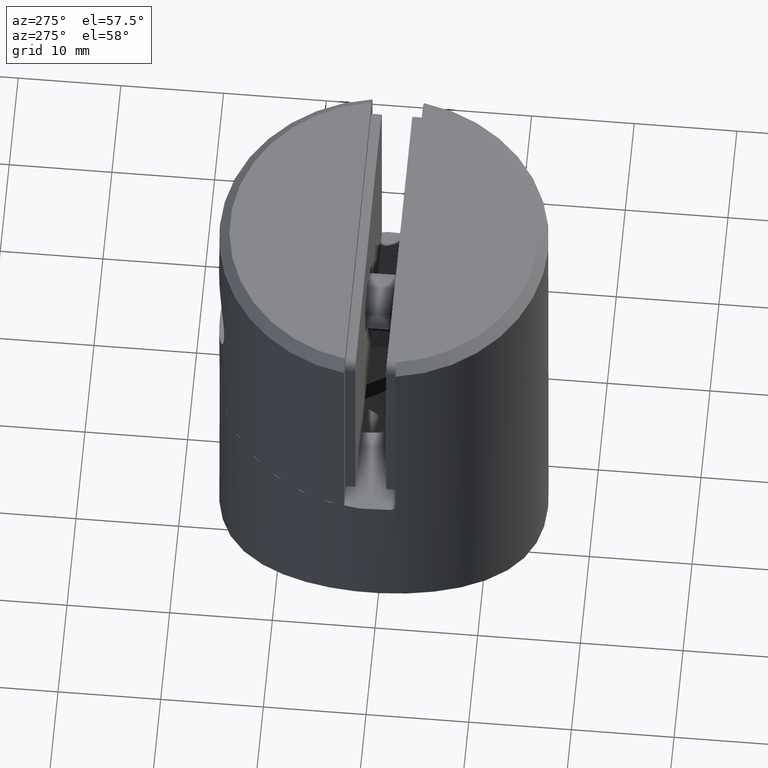
[diagram: clean part render]
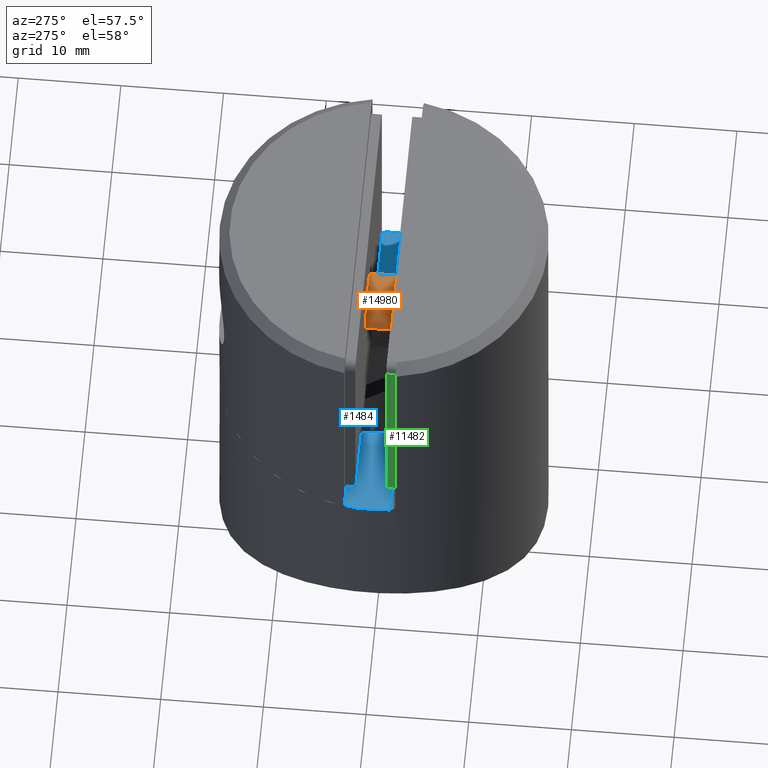
[diagram: same view with three faces highlighted in distinct colors, each labeled with its STEP entity id]
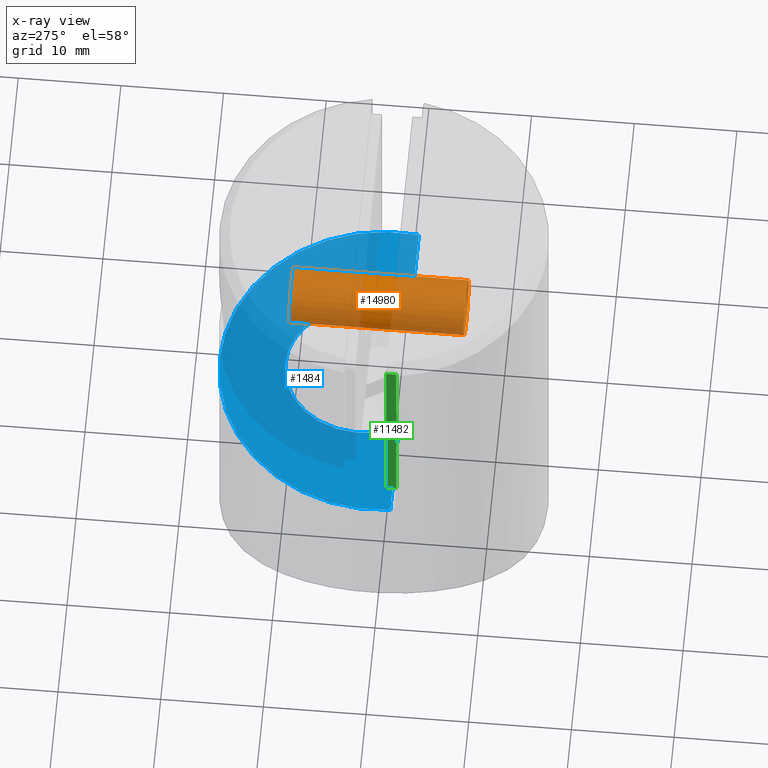
[diagram: x-ray of the same camera — body ghosted, the three highlighted faces saturated]
A machine part, auxiliary view with three faces highlighted in distinct colors.
The next image is the same camera in x-ray (body ghosted, the three faces saturated) — at least one of them is partly hidden behind the body in this view.
Their STEP definitions:

[orange] entity #14980 — the highlighted cylindrical surface (bore or boss wall) has radius 2.675 mm, axis along (0, 1, 0).
#106 = DIRECTION ( 'NONE',  ( 0.000000000000000000, 0.000000000000000000, -1.000000000000000000 ) ) ;
#698 = CARTESIAN_POINT ( 'NONE',  ( 0.000000000000000000, 0.000000000000000000, 0.000000000000000000 ) ) ;
#939 = CARTESIAN_POINT ( 'NONE',  ( 0.000000000000000000, 0.000000000000000000, 2.675000000000001155 ) ) ;
#1221 = CIRCLE ( 'NONE', #14673, 2.675000000000001155 ) ;
#2328 = CARTESIAN_POINT ( 'NONE',  ( 0.000000000000000000, -16.99999999999999645, -2.675000000000001155 ) ) ;
#3238 = DIRECTION ( 'NONE',  ( -0.000000000000000000, 1.000000000000000000, -0.000000000000000000 ) ) ;
#3551 = CIRCLE ( 'NONE', #14923, 2.675000000000001155 ) ;
#3632 = FACE_OUTER_BOUND ( 'NONE', #9208, .T. ) ;
#4940 = CYLINDRICAL_SURFACE ( 'NONE', #5937, 2.675000000000001155 ) ;
#5937 = AXIS2_PLACEMENT_3D ( 'NONE', #17170, #3238, #8716 ) ;
#8716 = DIRECTION ( 'NONE',  ( 0.000000000000000000, 0.000000000000000000, 1.000000000000000000 ) ) ;
#9076 = DIRECTION ( 'NONE',  ( 0.000000000000000000, 0.000000000000000000, 1.000000000000000000 ) ) ;
#9208 = EDGE_LOOP ( 'NONE', ( #10569 ) ) ;
#10114 = VERTEX_POINT ( 'NONE', #939 ) ;
#10569 = ORIENTED_EDGE ( 'NONE', *, *, #15660, .T. ) ;
#10855 = EDGE_CURVE ( 'NONE', #10114, #10114, #1221, .T. ) ;
#13598 = VERTEX_POINT ( 'NONE', #2328 ) ;
#13983 = CARTESIAN_POINT ( 'NONE',  ( 0.000000000000000000, -16.99999999999999645, 0.000000000000000000 ) ) ;
#14541 = FACE_OUTER_BOUND ( 'NONE', #17375, .T. ) ;
#14673 = AXIS2_PLACEMENT_3D ( 'NONE', #698, #17295, #9076 ) ;
#14923 = AXIS2_PLACEMENT_3D ( 'NONE', #13983, #15372, #106 ) ;
#14980 = ADVANCED_FACE ( 'NONE', ( #3632, #14541 ), #4940, .T. ) ;
#15275 = ORIENTED_EDGE ( 'NONE', *, *, #10855, .T. ) ;
#15372 = DIRECTION ( 'NONE',  ( 0.000000000000000000, 1.000000000000000000, 0.000000000000000000 ) ) ;
#15660 = EDGE_CURVE ( 'NONE', #13598, #13598, #3551, .T. ) ;
#17170 = CARTESIAN_POINT ( 'NONE',  ( 0.000000000000000000, -18.00000000000000000, 0.000000000000000000 ) ) ;
#17295 = DIRECTION ( 'NONE',  ( -0.000000000000000000, -1.000000000000000000, -0.000000000000000000 ) ) ;
#17375 = EDGE_LOOP ( 'NONE', ( #15275 ) ) ;

[blue] entity #1484 — the highlighted planar face has unit normal (0, -0, -1).
#4 = EDGE_CURVE ( 'NONE', #15419, #2227, #10868, .T. ) ;
#128 = CARTESIAN_POINT ( 'NONE',  ( 7.076622069001389903, -0.5284290019927397886, 15.00000000000000000 ) ) ;
#255 = DIRECTION ( 'NONE',  ( 0.000000000000000000, -1.917242093807535139E-17, -1.000000000000000000 ) ) ;
#299 = CARTESIAN_POINT ( 'NONE',  ( -15.87450786638754430, -2.000000000000001332, 15.00000000000000000 ) ) ;
#382 = DIRECTION ( 'NONE',  ( 0.000000000000000000, 1.000000000000000000, -1.917242093807535139E-17 ) ) ;
#786 = EDGE_CURVE ( 'NONE', #7756, #10656, #7160, .T. ) ;
#1384 = CARTESIAN_POINT ( 'NONE',  ( 7.131423088841220448, 0.2447344990263577713, 15.00000000000000000 ) ) ;
#1402 = EDGE_CURVE ( 'NONE', #10656, #15419, #3279, .T. ) ;
#1484 = ADVANCED_FACE ( 'NONE', ( #10315 ), #15758, .F. ) ;
#1519 = CARTESIAN_POINT ( 'NONE',  ( 5.045696227753969865, 9.614984130205071367, 14.99999999999999822 ) ) ;
#1631 = CARTESIAN_POINT ( 'NONE',  ( -5.045696227753917462, 9.614984130205108670, 14.99999999999999822 ) ) ;
#1632 = CARTESIAN_POINT ( 'NONE',  ( -7.131423088841227553, 0.2447344990264114784, 15.00000000000000000 ) ) ;
#1936 = AXIS2_PLACEMENT_3D ( 'NONE', #8578, #255, #382 ) ;
#2014 = DIRECTION ( 'NONE',  ( 1.000000000000000000, -0.000000000000000000, -0.000000000000000000 ) ) ;
#2227 = VERTEX_POINT ( 'NONE', #1384 ) ;
#2480 = EDGE_CURVE ( 'NONE', #7210, #2666, #14474, .T. ) ;
#2666 = VERTEX_POINT ( 'NONE', #6293 ) ;
#3279 =( BOUNDED_CURVE ( )  B_SPLINE_CURVE ( 3, ( #13988, #5687, #4472, #1632 ),
 .UNSPECIFIED., .F., .T. ) 
 B_SPLINE_CURVE_WITH_KNOTS ( ( 4, 4 ),
 ( 4.322451641404126299, 4.640287728610632101 ),
 .UNSPECIFIED. ) 
 CURVE ( )  GEOMETRIC_REPRESENTATION_ITEM ( )  RATIONAL_B_SPLINE_CURVE ( ( 1.000000000000000000, 0.9915993872373697338, 0.9915993872373697338, 1.000000000000000000 ) ) 
 REPRESENTATION_ITEM ( '' )  );
#4099 = DIRECTION ( 'NONE',  ( 0.000000000000000000, -1.000000000000000000, 0.000000000000000000 ) ) ;
#4472 = CARTESIAN_POINT ( 'NONE',  ( -7.076622069001397008, -0.5284290019927083693, 15.00000000000000000 ) ) ;
#4499 = ORIENTED_EDGE ( 'NONE', *, *, #16786, .T. ) ;
#5498 = EDGE_CURVE ( 'NONE', #2666, #7756, #16807, .T. ) ;
#5687 = CARTESIAN_POINT ( 'NONE',  ( -6.902441179652776704, -1.283012801296417482, 15.00000000000000000 ) ) ;
#6032 = ORIENTED_EDGE ( 'NONE', *, *, #786, .T. ) ;
#6107 = ORIENTED_EDGE ( 'NONE', *, *, #5498, .T. ) ;
#6139 = CARTESIAN_POINT ( 'NONE',  ( -7.131423088841227553, 0.2447344990264114784, 15.00000000000000000 ) ) ;
#6293 = CARTESIAN_POINT ( 'NONE',  ( 15.87450786638754430, -2.000000000000001332, 15.00000000000000000 ) ) ;
#7160 = LINE ( 'NONE', #10354, #13915 ) ;
#7210 = VERTEX_POINT ( 'NONE', #15707 ) ;
#7756 = VERTEX_POINT ( 'NONE', #299 ) ;
#8241 = DIRECTION ( 'NONE',  ( -0.000000000000000000, 1.917242093807535139E-17, 1.000000000000000000 ) ) ;
#8555 = CARTESIAN_POINT ( 'NONE',  ( 7.131423088841220448, 0.2447344990263577713, 15.00000000000000000 ) ) ;
#8578 = CARTESIAN_POINT ( 'NONE',  ( 0.000000000000000000, -2.940653797014001276E-33, 15.00000000000000000 ) ) ;
#9394 = EDGE_LOOP ( 'NONE', ( #6107, #6032, #16741, #14957, #4499, #16059 ) ) ;
#9566 = DIRECTION ( 'NONE',  ( 1.000000000000000000, -0.000000000000000000, -0.000000000000000000 ) ) ;
#9832 = CARTESIAN_POINT ( 'NONE',  ( -7.131423088841227553, 0.2447344990264114784, 15.00000000000000000 ) ) ;
#9847 =( BOUNDED_CURVE ( )  B_SPLINE_CURVE ( 3, ( #16787, #128, #9853, #16969 ),
 .UNSPECIFIED., .F., .T. ) 
 B_SPLINE_CURVE_WITH_KNOTS ( ( 4, 4 ),
 ( 1.642897578568961237, 1.960733665775459711 ),
 .UNSPECIFIED. ) 
 CURVE ( )  GEOMETRIC_REPRESENTATION_ITEM ( )  RATIONAL_B_SPLINE_CURVE ( ( 1.000000000000000000, 0.9915993872373701778, 0.9915993872373701778, 1.000000000000000000 ) ) 
 REPRESENTATION_ITEM ( '' )  );
#9853 = CARTESIAN_POINT ( 'NONE',  ( 6.902441179652769598, -1.283012801296430583, 15.00000000000000000 ) ) ;
#10315 = FACE_OUTER_BOUND ( 'NONE', #9394, .T. ) ;
#10354 = CARTESIAN_POINT ( 'NONE',  ( -6.389628886300967814, -2.000000000000001332, 15.00000000000000000 ) ) ;
#10656 = VERTEX_POINT ( 'NONE', #14559 ) ;
#10868 =( BOUNDED_CURVE ( )  B_SPLINE_CURVE ( 3, ( #9832, #16829, #1631, #12828, #1519, #15376, #8555 ),
 .UNSPECIFIED., .F., .T. ) 
 B_SPLINE_CURVE_WITH_KNOTS ( ( 4, 3, 4 ),
 ( 4.497065233503045434, 6.283185307179589785, 8.069305380856134136 ),
 .UNSPECIFIED. ) 
 CURVE ( )  GEOMETRIC_REPRESENTATION_ITEM ( )  RATIONAL_B_SPLINE_CURVE ( ( 1.000000000000000000, 0.7513541435075969943, 0.7513541435075969943, 1.000000000000000000, 0.7513541435075969943, 0.7513541435075969943, 1.000000000000000000 ) ) 
 REPRESENTATION_ITEM ( '' )  );
#12462 = CARTESIAN_POINT ( 'NONE',  ( 0.000000000000000000, -5.881307594028002552E-33, 15.00000000000000000 ) ) ;
#12509 = CARTESIAN_POINT ( 'NONE',  ( 15.80348062927910568, -2.000000000000001332, 15.00000000000000000 ) ) ;
#12828 = CARTESIAN_POINT ( 'NONE',  ( 2.593480985524365931E-14, 9.614984130205089130, 15.00000000000000000 ) ) ;
#13915 = VECTOR ( 'NONE', #2014, 1000.000000000000000 ) ;
#13988 = CARTESIAN_POINT ( 'NONE',  ( -6.613270099401565183, -2.000000000000004885, 15.00000000000000000 ) ) ;
#14474 = LINE ( 'NONE', #12509, #17748 ) ;
#14559 = CARTESIAN_POINT ( 'NONE',  ( -6.613270099401565183, -2.000000000000004885, 15.00000000000000000 ) ) ;
#14957 = ORIENTED_EDGE ( 'NONE', *, *, #4, .T. ) ;
#15320 = AXIS2_PLACEMENT_3D ( 'NONE', #12462, #8241, #4099 ) ;
#15376 = CARTESIAN_POINT ( 'NONE',  ( 8.209505265282350805, 5.457934394450649762, 14.99999999999999822 ) ) ;
#15419 = VERTEX_POINT ( 'NONE', #6139 ) ;
#15707 = CARTESIAN_POINT ( 'NONE',  ( 6.613270099401566071, -2.000000000000001332, 15.00000000000000000 ) ) ;
#15758 = PLANE ( 'NONE',  #1936 ) ;
#16059 = ORIENTED_EDGE ( 'NONE', *, *, #2480, .T. ) ;
#16741 = ORIENTED_EDGE ( 'NONE', *, *, #1402, .T. ) ;
#16786 = EDGE_CURVE ( 'NONE', #2227, #7210, #9847, .T. ) ;
#16787 = CARTESIAN_POINT ( 'NONE',  ( 7.131423088841220448, 0.2447344990263577713, 15.00000000000000000 ) ) ;
#16807 = CIRCLE ( 'NONE', #15320, 16.00000000000000000 ) ;
#16829 = CARTESIAN_POINT ( 'NONE',  ( -8.209505265282327713, 5.457934394450707494, 14.99999999999999822 ) ) ;
#16969 = CARTESIAN_POINT ( 'NONE',  ( 6.613270099401566071, -2.000000000000001332, 15.00000000000000000 ) ) ;
#17748 = VECTOR ( 'NONE', #9566, 1000.000000000000000 ) ;

[green] entity #11482 — the highlighted planar face has unit normal (1, 0, 0).
#108 = LINE ( 'NONE', #16269, #14271 ) ;
#1589 = CARTESIAN_POINT ( 'NONE',  ( 14.74999999999999645, 0.000000000000000000, -10.24999999999999289 ) ) ;
#3340 = LINE ( 'NONE', #6179, #10314 ) ;
#3662 = CARTESIAN_POINT ( 'NONE',  ( 14.75000000000000000, 0.000000000000000000, 11.24999999999999822 ) ) ;
#3784 = DIRECTION ( 'NONE',  ( -0.000000000000000000, 1.000000000000000000, -0.000000000000000000 ) ) ;
#4163 = EDGE_LOOP ( 'NONE', ( #11242, #11055, #17474, #6069 ) ) ;
#5035 = VECTOR ( 'NONE', #10550, 1000.000000000000000 ) ;
#6069 = ORIENTED_EDGE ( 'NONE', *, *, #8077, .T. ) ;
#6179 = CARTESIAN_POINT ( 'NONE',  ( 14.75000000000000000, 1.000000000000000000, 11.24999999999999822 ) ) ;
#6364 = LINE ( 'NONE', #3662, #5035 ) ;
#6443 = DIRECTION ( 'NONE',  ( -1.000000000000000000, 0.000000000000000000, 1.541976423090495633E-16 ) ) ;
#6763 = EDGE_CURVE ( 'NONE', #17456, #13634, #6364, .T. ) ;
#7392 = VERTEX_POINT ( 'NONE', #13153 ) ;
#7900 = DIRECTION ( 'NONE',  ( 1.541976423090495633E-16, 0.000000000000000000, 1.000000000000000000 ) ) ;
#7942 = CARTESIAN_POINT ( 'NONE',  ( 14.75000000000000000, 0.000000000000000000, 10.24999999999999822 ) ) ;
#8015 = PLANE ( 'NONE',  #12696 ) ;
#8077 = EDGE_CURVE ( 'NONE', #7392, #17456, #16223, .T. ) ;
#8150 = EDGE_CURVE ( 'NONE', #13634, #10834, #108, .T. ) ;
#8915 = DIRECTION ( 'NONE',  ( -1.541976423090495387E-16, 0.000000000000000000, -1.000000000000000000 ) ) ;
#10314 = VECTOR ( 'NONE', #8915, 1000.000000000000000 ) ;
#10550 = DIRECTION ( 'NONE',  ( -1.541976423090495387E-16, 0.000000000000000000, -1.000000000000000000 ) ) ;
#10834 = VERTEX_POINT ( 'NONE', #14562 ) ;
#11055 = ORIENTED_EDGE ( 'NONE', *, *, #8150, .T. ) ;
#11242 = ORIENTED_EDGE ( 'NONE', *, *, #6763, .T. ) ;
#11482 = ADVANCED_FACE ( 'NONE', ( #14265 ), #8015, .F. ) ;
#12108 = CARTESIAN_POINT ( 'NONE',  ( 14.75000000000000000, 1.000000000000000000, 11.24999999999999822 ) ) ;
#12696 = AXIS2_PLACEMENT_3D ( 'NONE', #12108, #6443, #7900 ) ;
#12874 = EDGE_CURVE ( 'NONE', #7392, #10834, #3340, .T. ) ;
#13153 = CARTESIAN_POINT ( 'NONE',  ( 14.75000000000000000, 1.000000000000000000, 10.24999999999999822 ) ) ;
#13634 = VERTEX_POINT ( 'NONE', #1589 ) ;
#13834 = VECTOR ( 'NONE', #17053, 1000.000000000000000 ) ;
#14265 = FACE_OUTER_BOUND ( 'NONE', #4163, .T. ) ;
#14271 = VECTOR ( 'NONE', #3784, 1000.000000000000000 ) ;
#14562 = CARTESIAN_POINT ( 'NONE',  ( 14.74999999999999645, 1.000000000000000000, -10.24999999999999289 ) ) ;
#16223 = LINE ( 'NONE', #17182, #13834 ) ;
#16269 = CARTESIAN_POINT ( 'NONE',  ( 14.74999999999999645, 1.000000000000000000, -10.25000000000000000 ) ) ;
#17053 = DIRECTION ( 'NONE',  ( 0.000000000000000000, -1.000000000000000000, 0.000000000000000000 ) ) ;
#17182 = CARTESIAN_POINT ( 'NONE',  ( 14.75000000000000000, 1.000000000000000000, 10.24999999999999822 ) ) ;
#17456 = VERTEX_POINT ( 'NONE', #7942 ) ;
#17474 = ORIENTED_EDGE ( 'NONE', *, *, #12874, .F. ) ;